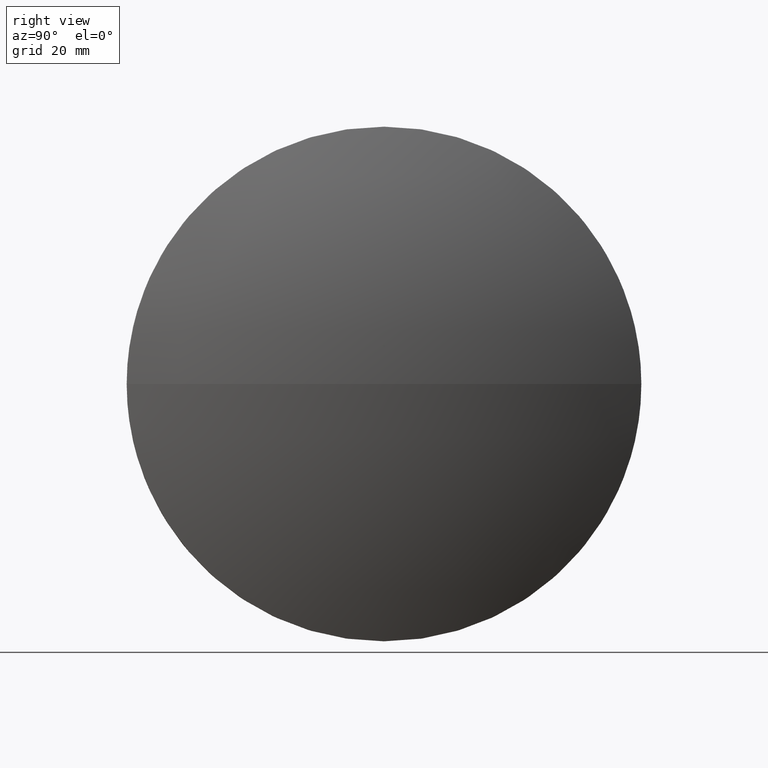
[diagram: clean part render]
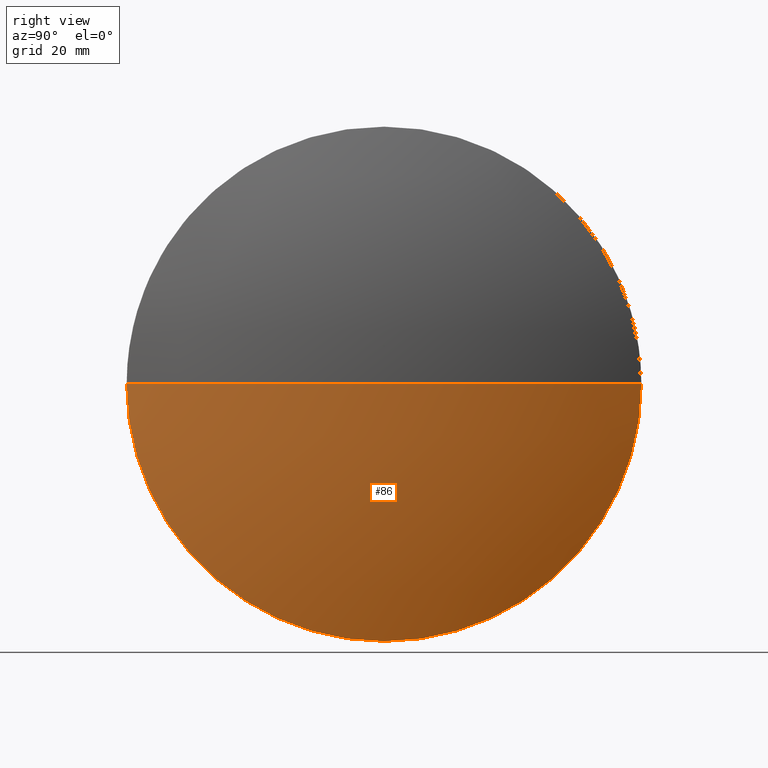
[diagram: same view with one face highlighted and labeled with its STEP entity id]
A machine part, right view. The second image highlights one B-rep face of the part: STEP entity #86.
In plain terms, the highlighted spherical surface has radius 129.403 mm.
Its self-contained STEP definition (entity closure, byte-faithful):
#1 = ORIENTED_EDGE ( 'NONE', *, *, #38, .F. ) ;
#3 = DIRECTION ( 'NONE',  ( -1.000000000000000000, -0.0000000000000000000, -0.0000000000000000000 ) ) ;
#6 = CARTESIAN_POINT ( 'NONE',  ( 229.9713472661685500, 130.4671098528244200, -50.00000000000001400 ) ) ;
#12 = EDGE_LOOP ( 'NONE', ( #1, #105, #82, #57 ) ) ;
#15 = DIRECTION ( 'NONE',  ( -0.0000000000000000000, 0.0000000000000000000, -1.000000000000000000 ) ) ;
#17 = DIRECTION ( 'NONE',  ( 0.0000000000000000000, 1.224646799147353200E-016, -1.000000000000000000 ) ) ;
#18 = DIRECTION ( 'NONE',  ( 0.0000000000000000000, 0.0000000000000000000, 1.000000000000000000 ) ) ;
#27 = VERTEX_POINT ( 'NONE', #6 ) ;
#31 = CIRCLE ( 'NONE', #135, 50.00000000000001400 ) ;
#33 = DIRECTION ( 'NONE',  ( -1.000000000000000000, -0.0000000000000000000, -0.0000000000000000000 ) ) ;
#36 = VERTEX_POINT ( 'NONE', #43 ) ;
#38 = EDGE_CURVE ( 'NONE', #136, #36, #101, .T. ) ;
#39 = CIRCLE ( 'NONE', #186, 50.00000000000001400 ) ;
#43 = CARTESIAN_POINT ( 'NONE',  ( 229.9713472661685200, 180.4671098528244500, 0.0000000000000000000 ) ) ;
#44 = CARTESIAN_POINT ( 'NONE',  ( 240.0213472661685900, 130.4671098528244200, 0.0000000000000000000 ) ) ;
#45 = VERTEX_POINT ( 'NONE', #165 ) ;
#57 = ORIENTED_EDGE ( 'NONE', *, *, #131, .F. ) ;
#59 = CARTESIAN_POINT ( 'NONE',  ( 110.6182378134324400, 130.4671098528244200, 0.0000000000000000000 ) ) ;
#61 = CARTESIAN_POINT ( 'NONE',  ( 229.9713472661685500, 130.4671098528244200, 0.0000000000000000000 ) ) ;
#78 = CIRCLE ( 'NONE', #118, 129.4031094527361200 ) ;
#81 = AXIS2_PLACEMENT_3D ( 'NONE', #85, #15, #164 ) ;
#82 = ORIENTED_EDGE ( 'NONE', *, *, #169, .F. ) ;
#85 = CARTESIAN_POINT ( 'NONE',  ( 110.6182378134324400, 130.4671098528244200, 0.0000000000000000000 ) ) ;
#86 = ADVANCED_FACE ( 'NONE', ( #87 ), #173, .T. ) ;
#87 = FACE_OUTER_BOUND ( 'NONE', #12, .T. ) ;
#97 = DIRECTION ( 'NONE',  ( 0.0000000000000000000, 1.000000000000000000, 1.224646799147353500E-016 ) ) ;
#98 = AXIS2_PLACEMENT_3D ( 'NONE', #59, #150, #106 ) ;
#101 = CIRCLE ( 'NONE', #98, 129.4031094527361500 ) ;
#105 = ORIENTED_EDGE ( 'NONE', *, *, #159, .T. ) ;
#106 = DIRECTION ( 'NONE',  ( 1.000000000000000000, 0.0000000000000000000, 0.0000000000000000000 ) ) ;
#113 = CARTESIAN_POINT ( 'NONE',  ( 110.6182378134324400, 130.4671098528244200, 0.0000000000000000000 ) ) ;
#118 = AXIS2_PLACEMENT_3D ( 'NONE', #113, #17, #97 ) ;
#122 = CARTESIAN_POINT ( 'NONE',  ( 229.9713472661685500, 130.4671098528244200, 0.0000000000000000000 ) ) ;
#131 = EDGE_CURVE ( 'NONE', #36, #27, #31, .T. ) ;
#135 = AXIS2_PLACEMENT_3D ( 'NONE', #61, #33, #18 ) ;
#136 = VERTEX_POINT ( 'NONE', #44 ) ;
#150 = DIRECTION ( 'NONE',  ( -0.0000000000000000000, 0.0000000000000000000, 1.000000000000000000 ) ) ;
#153 = DIRECTION ( 'NONE',  ( 0.0000000000000000000, 0.0000000000000000000, 1.000000000000000000 ) ) ;
#159 = EDGE_CURVE ( 'NONE', #136, #45, #78, .T. ) ;
#164 = DIRECTION ( 'NONE',  ( 0.0000000000000000000, 1.000000000000000000, 0.0000000000000000000 ) ) ;
#165 = CARTESIAN_POINT ( 'NONE',  ( 229.9713472661685200, 80.46710985282439300, -6.123233995736770000E-015 ) ) ;
#169 = EDGE_CURVE ( 'NONE', #27, #45, #39, .T. ) ;
#173 = SPHERICAL_SURFACE ( 'NONE', #81, 129.4031094527361500 ) ;
#186 = AXIS2_PLACEMENT_3D ( 'NONE', #122, #3, #153 ) ;